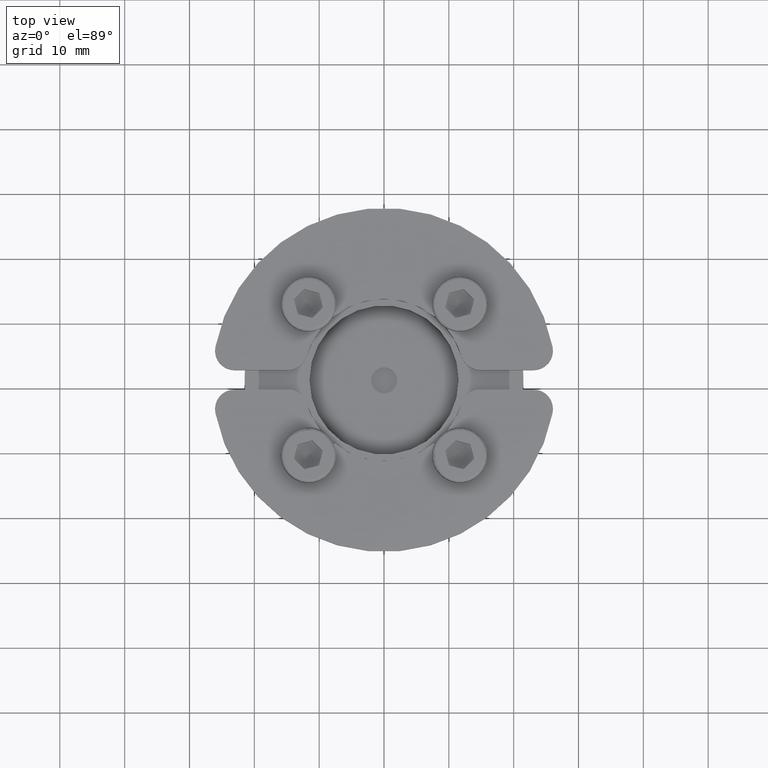
[diagram: clean part render]
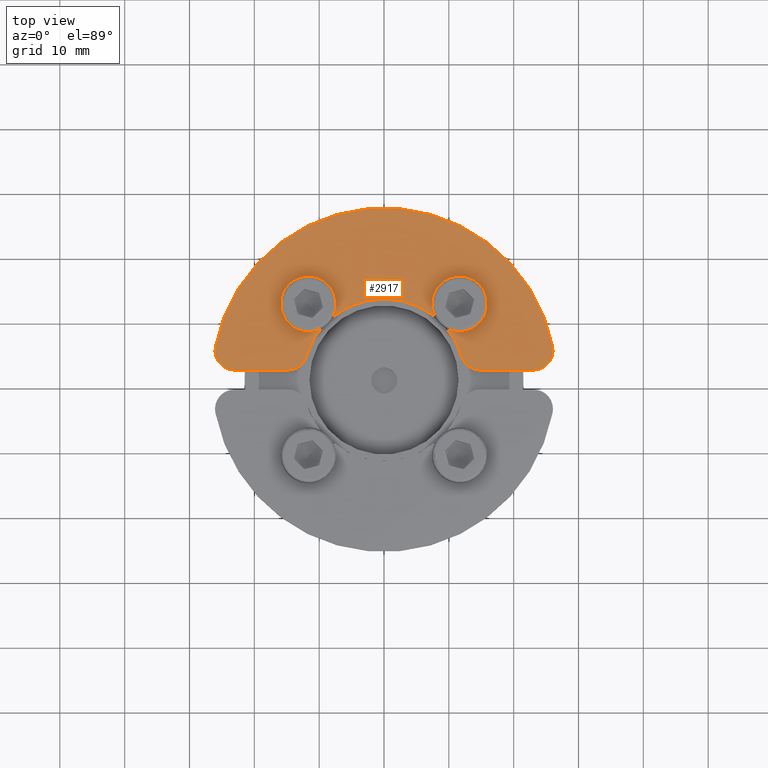
[diagram: same view with one face highlighted and labeled with its STEP entity id]
A machine part, top view. The second image highlights one B-rep face of the part: STEP entity #2917.
In plain terms, the highlighted planar face has unit normal (0, 0, 1).
Its self-contained STEP definition (entity closure, byte-faithful):
#229=LINE('',#4971,#419);
#235=LINE('',#4993,#425);
#419=VECTOR('',#3994,10.);
#425=VECTOR('',#4016,10.);
#610=FACE_OUTER_BOUND('',#787,.T.);
#787=EDGE_LOOP('',(#2284,#2285,#2286,#2287,#2288,#2289,#2290,#2291,#2292,
#2293,#2294,#2295,#2296,#2297));
#942=CIRCLE('',#3186,4.25);
#943=CIRCLE('',#3187,4.25);
#953=CIRCLE('',#3208,4.25);
#954=CIRCLE('',#3209,4.25);
#964=CIRCLE('',#3223,3.);
#970=CIRCLE('',#3232,3.);
#971=CIRCLE('',#3235,3.);
#973=CIRCLE('',#3238,12.5);
#974=CIRCLE('',#3239,12.5);
#975=CIRCLE('',#3240,12.5);
#977=CIRCLE('',#3243,3.);
#978=CIRCLE('',#3245,26.5);
#1210=VERTEX_POINT('',#4851);
#1211=VERTEX_POINT('',#4852);
#1212=VERTEX_POINT('',#4854);
#1233=VERTEX_POINT('',#4931);
#1234=VERTEX_POINT('',#4932);
#1235=VERTEX_POINT('',#4934);
#1242=VERTEX_POINT('',#4956);
#1243=VERTEX_POINT('',#4957);
#1248=VERTEX_POINT('',#4969);
#1253=VERTEX_POINT('',#4983);
#1254=VERTEX_POINT('',#4985);
#1256=VERTEX_POINT('',#4991);
#1257=VERTEX_POINT('',#4995);
#1259=VERTEX_POINT('',#5006);
#1552=EDGE_CURVE('',#1210,#1211,#942,.T.);
#1553=EDGE_CURVE('',#1212,#1210,#943,.T.);
#1584=EDGE_CURVE('',#1233,#1234,#953,.T.);
#1585=EDGE_CURVE('',#1235,#1233,#954,.T.);
#1596=EDGE_CURVE('',#1242,#1243,#964,.T.);
#1603=EDGE_CURVE('',#1242,#1248,#229,.T.);
#1610=EDGE_CURVE('',#1253,#1254,#970,.T.);
#1614=EDGE_CURVE('',#1253,#1256,#235,.T.);
#1615=EDGE_CURVE('',#1257,#1256,#971,.T.);
#1618=EDGE_CURVE('',#1211,#1243,#973,.T.);
#1619=EDGE_CURVE('',#1234,#1212,#974,.T.);
#1620=EDGE_CURVE('',#1257,#1235,#975,.T.);
#1622=EDGE_CURVE('',#1259,#1248,#977,.T.);
#1624=EDGE_CURVE('',#1259,#1254,#978,.T.);
#2284=ORIENTED_EDGE('',*,*,#1552,.T.);
#2285=ORIENTED_EDGE('',*,*,#1618,.T.);
#2286=ORIENTED_EDGE('',*,*,#1596,.F.);
#2287=ORIENTED_EDGE('',*,*,#1603,.T.);
#2288=ORIENTED_EDGE('',*,*,#1622,.F.);
#2289=ORIENTED_EDGE('',*,*,#1624,.T.);
#2290=ORIENTED_EDGE('',*,*,#1610,.F.);
#2291=ORIENTED_EDGE('',*,*,#1614,.T.);
#2292=ORIENTED_EDGE('',*,*,#1615,.F.);
#2293=ORIENTED_EDGE('',*,*,#1620,.T.);
#2294=ORIENTED_EDGE('',*,*,#1585,.T.);
#2295=ORIENTED_EDGE('',*,*,#1584,.T.);
#2296=ORIENTED_EDGE('',*,*,#1619,.T.);
#2297=ORIENTED_EDGE('',*,*,#1553,.T.);
#2590=PLANE('',#3246);
#2917=ADVANCED_FACE('',(#610),#2590,.T.);
#3186=AXIS2_PLACEMENT_3D('',#4853,#3894,#3895);
#3187=AXIS2_PLACEMENT_3D('',#4855,#3896,#3897);
#3208=AXIS2_PLACEMENT_3D('',#4933,#3952,#3953);
#3209=AXIS2_PLACEMENT_3D('',#4935,#3954,#3955);
#3223=AXIS2_PLACEMENT_3D('',#4958,#3983,#3984);
#3232=AXIS2_PLACEMENT_3D('',#4986,#4009,#4010);
#3235=AXIS2_PLACEMENT_3D('',#4996,#4019,#4020);
#3238=AXIS2_PLACEMENT_3D('',#5001,#4026,#4027);
#3239=AXIS2_PLACEMENT_3D('',#5002,#4028,#4029);
#3240=AXIS2_PLACEMENT_3D('',#5003,#4030,#4031);
#3243=AXIS2_PLACEMENT_3D('',#5007,#4036,#4037);
#3245=AXIS2_PLACEMENT_3D('',#5010,#4041,#4042);
#3246=AXIS2_PLACEMENT_3D('',#5011,#4043,#4044);
#3894=DIRECTION('center_axis',(-4.03630783555513E-48,-3.79822709830392E-64,
-1.));
#3895=DIRECTION('ref_axis',(0.707106781186548,0.707106781186547,-7.31541631717832E-14));
#3896=DIRECTION('center_axis',(-4.03630783555513E-48,-3.79822709830392E-64,
-1.));
#3897=DIRECTION('ref_axis',(0.707106781186548,0.707106781186547,-7.31541631717832E-14));
#3952=DIRECTION('center_axis',(-4.03630783555513E-48,-3.79822709830392E-64,
-1.));
#3953=DIRECTION('ref_axis',(-0.707106781186547,0.707106781186548,-7.31541631717831E-14));
#3954=DIRECTION('center_axis',(-4.03630783555513E-48,-3.79822709830392E-64,
-1.));
#3955=DIRECTION('ref_axis',(-0.707106781186547,0.707106781186548,-7.31541631717831E-14));
#3983=DIRECTION('center_axis',(-4.03630783555513E-48,-3.79822709830392E-64,
-1.));
#3984=DIRECTION('ref_axis',(-0.595683397181271,-0.803219328902499,2.40436156355286E-48));
#3994=DIRECTION('',(1.,-1.23259516440783E-32,-4.03630783555513E-48));
#4009=DIRECTION('center_axis',(-4.03630783555513E-48,-3.79822709830392E-64,
-1.));
#4010=DIRECTION('ref_axis',(-0.77184498498796,-0.635810757339741,3.11540396074084E-48));
#4016=DIRECTION('',(1.,-1.23259516440783E-32,-4.03630783555513E-48));
#4019=DIRECTION('center_axis',(-4.03630783555513E-48,-3.79822709830392E-64,
-1.));
#4020=DIRECTION('ref_axis',(0.59568339718127,-0.803219328902499,-2.40436156355286E-48));
#4026=DIRECTION('center_axis',(-4.03630783555513E-48,-3.79822709830392E-64,
-1.));
#4027=DIRECTION('ref_axis',(-0.992773891679269,-0.12,4.0071410379196E-48));
#4028=DIRECTION('center_axis',(-4.03630783555513E-48,-3.79822709830392E-64,
-1.));
#4029=DIRECTION('ref_axis',(-0.992773891679269,-0.12,4.0071410379196E-48));
#4030=DIRECTION('center_axis',(-4.03630783555513E-48,-3.79822709830392E-64,
-1.));
#4031=DIRECTION('ref_axis',(-0.992773891679269,-0.12,4.0071410379196E-48));
#4036=DIRECTION('center_axis',(-4.03630783555513E-48,-3.79822709830392E-64,
-1.));
#4037=DIRECTION('ref_axis',(0.77184498498796,-0.635810757339742,-3.11540396074084E-48));
#4041=DIRECTION('center_axis',(4.03630783555513E-48,3.79822709830392E-64,
1.));
#4042=DIRECTION('ref_axis',(0.998396721156449,0.0566037735849058,-4.02983650859633E-48));
#4043=DIRECTION('center_axis',(4.03630783555513E-48,3.79822709830392E-64,
1.));
#4044=DIRECTION('ref_axis',(1.,-1.23259516440783E-32,-4.03630783555513E-48));
#4851=CARTESIAN_POINT('',(14.6724657096209,14.6724657096209,2.5));
#4852=CARTESIAN_POINT('',(9.67741852174677,7.91186266026861,2.5));
#4853=CARTESIAN_POINT('Origin',(11.667261889578,11.667261889578,2.49999999999999));
#4854=CARTESIAN_POINT('',(7.9118626602686,9.67741852174677,2.5));
#4855=CARTESIAN_POINT('Origin',(11.667261889578,11.667261889578,2.49999999999999));
#4931=CARTESIAN_POINT('',(-14.6724657096209,14.6724657096209,2.5));
#4932=CARTESIAN_POINT('',(-7.91186266026862,9.67741852174675,2.5));
#4933=CARTESIAN_POINT('Origin',(-11.667261889578,11.667261889578,2.5));
#4934=CARTESIAN_POINT('',(-9.67741852174676,7.91186266026861,2.5));
#4935=CARTESIAN_POINT('Origin',(-11.667261889578,11.667261889578,2.5));
#4956=CARTESIAN_POINT('',(14.8323969741913,1.5,2.5));
#4957=CARTESIAN_POINT('',(11.9616104630575,3.62903225806452,2.5));
#4958=CARTESIAN_POINT('Origin',(14.8323969741913,4.5,2.5));
#4969=CARTESIAN_POINT('',(23.0651251893416,1.5,2.5));
#4971=CARTESIAN_POINT('',(12.4096736459909,1.5,2.5));
#4983=CARTESIAN_POINT('',(-23.0651251893416,1.5,2.5));
#4985=CARTESIAN_POINT('',(-26.009609256066,5.07446808510638,2.5));
#4986=CARTESIAN_POINT('Origin',(-23.0651251893416,4.5,2.5));
#4991=CARTESIAN_POINT('',(-14.8323969741913,1.5,2.5));
#4993=CARTESIAN_POINT('',(-26.4575131106459,1.5,2.5));
#4995=CARTESIAN_POINT('',(-11.9616104630575,3.62903225806452,2.5));
#4996=CARTESIAN_POINT('Origin',(-14.8323969741913,4.5,2.5));
#5001=CARTESIAN_POINT('Origin',(4.57966997657877E-15,-1.11022302462516E-15,
2.5));
#5002=CARTESIAN_POINT('Origin',(4.57966997657877E-15,-1.11022302462516E-15,
2.5));
#5003=CARTESIAN_POINT('Origin',(4.57966997657877E-15,-1.11022302462516E-15,
2.5));
#5006=CARTESIAN_POINT('',(26.0096092560661,5.07446808510639,2.5));
#5007=CARTESIAN_POINT('Origin',(23.0651251893416,4.5,2.5));
#5010=CARTESIAN_POINT('Origin',(4.57966997657877E-15,-1.11022302462516E-15,
2.5));
#5011=CARTESIAN_POINT('Origin',(5.03007381474736E-15,11.4869483257793,2.5));